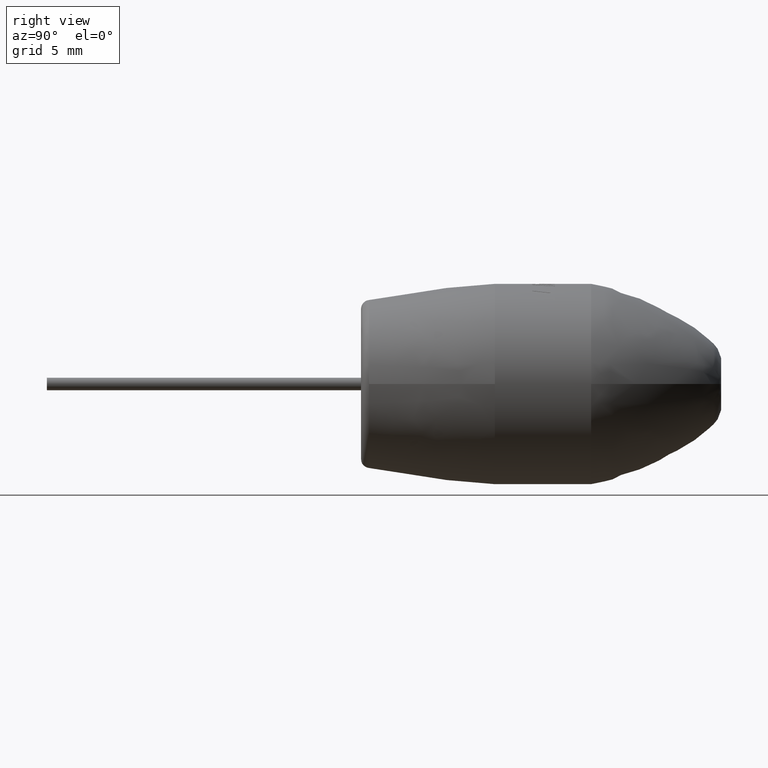
[diagram: clean part render]
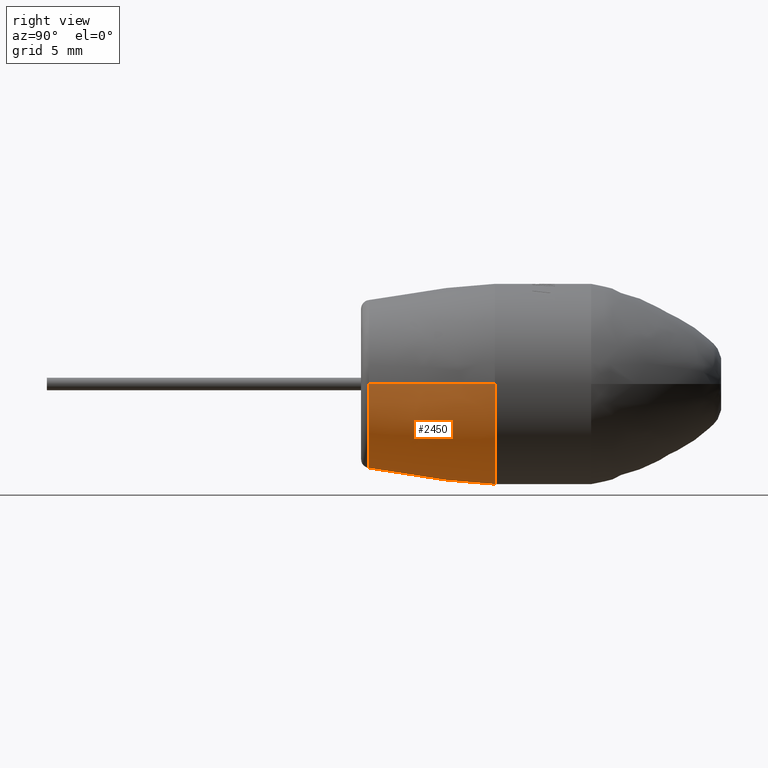
[diagram: same view with one face highlighted and labeled with its STEP entity id]
A machine part, right view. The second image highlights one B-rep face of the part: STEP entity #2450.
In plain terms, the highlighted face is a freeform B-spline surface patch.
Its self-contained STEP definition (entity closure, byte-faithful):
#12 = CARTESIAN_POINT ( 'NONE',  ( 3.731606038113031200, 0.3520181413225391100, 0.0000000000000000000 ) ) ;
#69 =( BOUNDED_SURFACE ( )  B_SPLINE_SURFACE ( 3, 3, ( 
 ( #87, #196, #1548, #397 ),
 ( #1843, #3274, #712, #2190 ),
 ( #427, #2384, #484, #3563 ),
 ( #2480, #980, #1062, #106 ) ),
 .UNSPECIFIED., .F., .F., .F. ) 
 B_SPLINE_SURFACE_WITH_KNOTS ( ( 4, 4 ),
 ( 4, 4 ),
 ( 0.0000000000000000000, 0.9061614168338424400 ),
 ( 0.0000000000000000000, 1.000000000000000000 ),
 .UNSPECIFIED. ) 
 GEOMETRIC_REPRESENTATION_ITEM ( )  RATIONAL_B_SPLINE_SURFACE ( (
 ( 1.000000000000000000, 0.3333333333333334300, 0.3333333333333334300, 1.000000000000000000),
 ( 1.000000000000000000, 0.3333333333333334300, 0.3333333333333334300, 1.000000000000000000),
 ( 1.000000000000000000, 0.3333333333333334300, 0.3333333333333334300, 1.000000000000000000),
 ( 1.000000000000000000, 0.3333333333333334300, 0.3333333333333334300, 1.000000000000000000) ) ) 
 REPRESENTATION_ITEM ( '' )  SURFACE ( )  );
#87 = CARTESIAN_POINT ( 'NONE',  ( -4.450000000000000200, 5.948800000000001200, 5.449678256205721800E-016 ) ) ;
#97 = ORIENTED_EDGE ( 'NONE', *, *, #2856, .T. ) ;
#106 = CARTESIAN_POINT ( 'NONE',  ( 3.731606038113031200, 0.3520181413225391100, -9.139798780508120100E-016 ) ) ;
#107 = VERTEX_POINT ( 'NONE', #1076 ) ;
#196 = CARTESIAN_POINT ( 'NONE',  ( -4.450000000000001100, 5.948800000000002100, -8.899999999999998600 ) ) ;
#321 = B_SPLINE_CURVE_WITH_KNOTS ( 'NONE', 3,
 ( #3475, #581, #1990, #12 ),
 .UNSPECIFIED., .F., .F.,
 ( 4, 4 ),
 ( 0.0000000000000000000, 0.9061614168338424400 ),
 .UNSPECIFIED. ) ;
#397 = CARTESIAN_POINT ( 'NONE',  ( 4.450000000000000200, 5.948800000000001200, -1.089935651241144400E-015 ) ) ;
#427 = CARTESIAN_POINT ( 'NONE',  ( -3.868251410342838300, 1.586056352738458800, 4.737241707973592800E-016 ) ) ;
#435 = DIRECTION ( 'NONE',  ( 0.0000000000000000000, 1.000000000000000000, 0.0000000000000000000 ) ) ;
#484 = CARTESIAN_POINT ( 'NONE',  ( 3.868251410342836900, 1.586056352738458800, -7.736502820685676500 ) ) ;
#552 = FACE_OUTER_BOUND ( 'NONE', #1664, .T. ) ;
#581 = CARTESIAN_POINT ( 'NONE',  ( 4.387620518288238200, 3.762619615715530500, 0.0000000000000000000 ) ) ;
#678 = CIRCLE ( 'NONE', #1124, 4.450000000000000200 ) ;
#712 = CARTESIAN_POINT ( 'NONE',  ( 4.387620518288236400, 3.762619615715530900, -8.775241036576476400 ) ) ;
#718 = DIRECTION ( 'NONE',  ( 0.0000000000000000000, 0.0000000000000000000, -1.000000000000000000 ) ) ;
#825 = CARTESIAN_POINT ( 'NONE',  ( -4.450000000000000200, 5.948800000000001200, 5.449678256205721800E-016 ) ) ;
#886 = EDGE_CURVE ( 'NONE', #2174, #2733, #678, .T. ) ;
#896 = VERTEX_POINT ( 'NONE', #2686 ) ;
#962 = ORIENTED_EDGE ( 'NONE', *, *, #1400, .T. ) ;
#980 = CARTESIAN_POINT ( 'NONE',  ( -3.731606038113032000, 0.3520181413225391100, -7.463212076226059600 ) ) ;
#1062 = CARTESIAN_POINT ( 'NONE',  ( 3.731606038113029400, 0.3520181413225391100, -7.463212076226061400 ) ) ;
#1076 = CARTESIAN_POINT ( 'NONE',  ( 3.731606038113031200, 0.3520181413225391100, 0.0000000000000000000 ) ) ;
#1079 = CIRCLE ( 'NONE', #3206, 3.731606038113031200 ) ;
#1112 = ORIENTED_EDGE ( 'NONE', *, *, #3283, .F. ) ;
#1124 = AXIS2_PLACEMENT_3D ( 'NONE', #2522, #3344, #2495 ) ;
#1136 = DIRECTION ( 'NONE',  ( 0.0000000000000000000, 1.000000000000000000, 0.0000000000000000000 ) ) ;
#1215 = EDGE_CURVE ( 'NONE', #896, #107, #321, .T. ) ;
#1259 = DIRECTION ( 'NONE',  ( -0.0000000000000000000, -1.000000000000000000, -0.0000000000000000000 ) ) ;
#1275 = CARTESIAN_POINT ( 'NONE',  ( 0.0000000000000000000, 5.948800000000001200, 0.0000000000000000000 ) ) ;
#1311 = CIRCLE ( 'NONE', #3573, 4.450000000000000200 ) ;
#1400 = EDGE_CURVE ( 'NONE', #2733, #896, #1311, .T. ) ;
#1477 = VERTEX_POINT ( 'NONE', #1904 ) ;
#1548 = CARTESIAN_POINT ( 'NONE',  ( 4.449999999999996600, 5.948800000000002100, -8.899999999999998600 ) ) ;
#1651 = CARTESIAN_POINT ( 'NONE',  ( -3.868251410342838300, 1.586056352738458800, 4.737241707973592800E-016 ) ) ;
#1664 = EDGE_LOOP ( 'NONE', ( #1112, #2300, #962, #2087, #3046, #97 ) ) ;
#1709 = EDGE_CURVE ( 'NONE', #107, #2858, #1802, .T. ) ;
#1802 = CIRCLE ( 'NONE', #3315, 3.731606038113031200 ) ;
#1838 = CARTESIAN_POINT ( 'NONE',  ( 0.0000000000000000000, 0.3520181413225391100, -3.731606038113031200 ) ) ;
#1843 = CARTESIAN_POINT ( 'NONE',  ( -4.387620518288238200, 3.762619615715530500, 5.373285423594941700E-016 ) ) ;
#1904 = CARTESIAN_POINT ( 'NONE',  ( -3.731606038113031200, 0.3520181413225391100, 5.009788823229889900E-016 ) ) ;
#1936 = CARTESIAN_POINT ( 'NONE',  ( -3.731606038113031200, 0.3520181413225391100, 5.009788823229889900E-016 ) ) ;
#1990 = CARTESIAN_POINT ( 'NONE',  ( 3.868251410342838300, 1.586056352738458800, 0.0000000000000000000 ) ) ;
#2087 = ORIENTED_EDGE ( 'NONE', *, *, #1215, .T. ) ;
#2145 = DIRECTION ( 'NONE',  ( 0.0000000000000000000, 0.0000000000000000000, -1.000000000000000000 ) ) ;
#2174 = VERTEX_POINT ( 'NONE', #2459 ) ;
#2190 = CARTESIAN_POINT ( 'NONE',  ( 4.387620518288238200, 3.762619615715530500, -1.074657084718988300E-015 ) ) ;
#2262 = CARTESIAN_POINT ( 'NONE',  ( 0.0000000000000000000, 0.3520181413225391100, 0.0000000000000000000 ) ) ;
#2300 = ORIENTED_EDGE ( 'NONE', *, *, #886, .T. ) ;
#2384 = CARTESIAN_POINT ( 'NONE',  ( -3.868251410342839600, 1.586056352738458800, -7.736502820685674700 ) ) ;
#2450 = ADVANCED_FACE ( 'NONE', ( #552 ), #69, .F. ) ;
#2459 = CARTESIAN_POINT ( 'NONE',  ( -4.450000000000000200, 5.948800000000001200, 5.449678256205721800E-016 ) ) ;
#2480 = CARTESIAN_POINT ( 'NONE',  ( -3.731606038113031200, 0.3520181413225391100, 4.569899390254059000E-016 ) ) ;
#2495 = DIRECTION ( 'NONE',  ( 0.0000000000000000000, 0.0000000000000000000, -1.000000000000000000 ) ) ;
#2522 = CARTESIAN_POINT ( 'NONE',  ( 0.0000000000000000000, 5.948800000000001200, 0.0000000000000000000 ) ) ;
#2686 = CARTESIAN_POINT ( 'NONE',  ( 4.450000000000000200, 5.948800000000001200, 0.0000000000000000000 ) ) ;
#2733 = VERTEX_POINT ( 'NONE', #2985 ) ;
#2792 = CARTESIAN_POINT ( 'NONE',  ( -4.387620518288238200, 3.762619615715530500, 5.373285423594941700E-016 ) ) ;
#2856 = EDGE_CURVE ( 'NONE', #2858, #1477, #1079, .T. ) ;
#2858 = VERTEX_POINT ( 'NONE', #1838 ) ;
#2985 = CARTESIAN_POINT ( 'NONE',  ( 0.0000000000000000000, 5.948800000000001200, -4.450000000000000200 ) ) ;
#3046 = ORIENTED_EDGE ( 'NONE', *, *, #1709, .T. ) ;
#3206 = AXIS2_PLACEMENT_3D ( 'NONE', #3569, #435, #718 ) ;
#3274 = CARTESIAN_POINT ( 'NONE',  ( -4.387620518288239100, 3.762619615715530900, -8.775241036576474600 ) ) ;
#3283 = EDGE_CURVE ( 'NONE', #2174, #1477, #3301, .T. ) ;
#3301 = B_SPLINE_CURVE_WITH_KNOTS ( 'NONE', 3,
 ( #825, #2792, #1651, #1936 ),
 .UNSPECIFIED., .F., .F.,
 ( 4, 4 ),
 ( 0.0000000000000000000, 0.9061614168338424400 ),
 .UNSPECIFIED. ) ;
#3315 = AXIS2_PLACEMENT_3D ( 'NONE', #2262, #1136, #3432 ) ;
#3344 = DIRECTION ( 'NONE',  ( -0.0000000000000000000, -1.000000000000000000, -0.0000000000000000000 ) ) ;
#3432 = DIRECTION ( 'NONE',  ( 0.0000000000000000000, 0.0000000000000000000, -1.000000000000000000 ) ) ;
#3475 = CARTESIAN_POINT ( 'NONE',  ( 4.450000000000000200, 5.948800000000001200, 0.0000000000000000000 ) ) ;
#3563 = CARTESIAN_POINT ( 'NONE',  ( 3.868251410342838300, 1.586056352738458800, -9.474483415947183600E-016 ) ) ;
#3569 = CARTESIAN_POINT ( 'NONE',  ( 0.0000000000000000000, 0.3520181413225391100, 0.0000000000000000000 ) ) ;
#3573 = AXIS2_PLACEMENT_3D ( 'NONE', #1275, #1259, #2145 ) ;